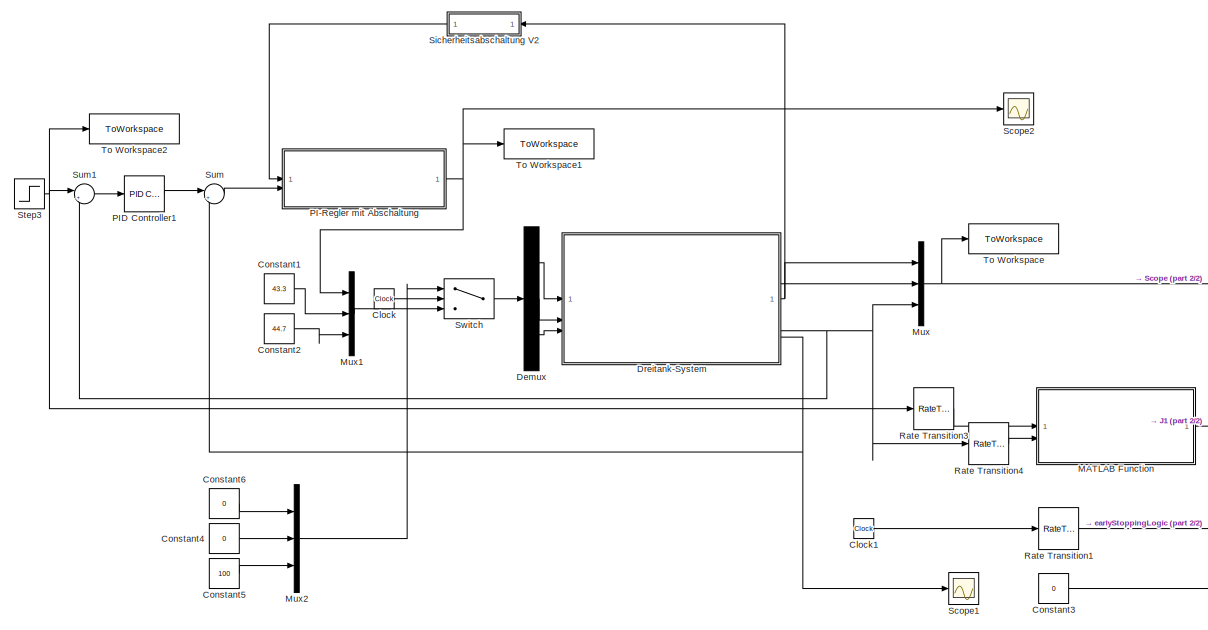
[diagram: root canvas - part 1/2, left side, full height]
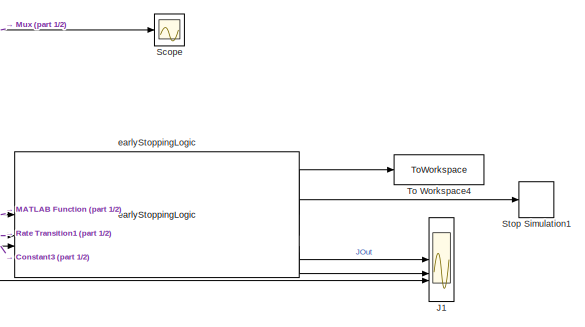
[diagram: root canvas - part 2/2, middle right region]
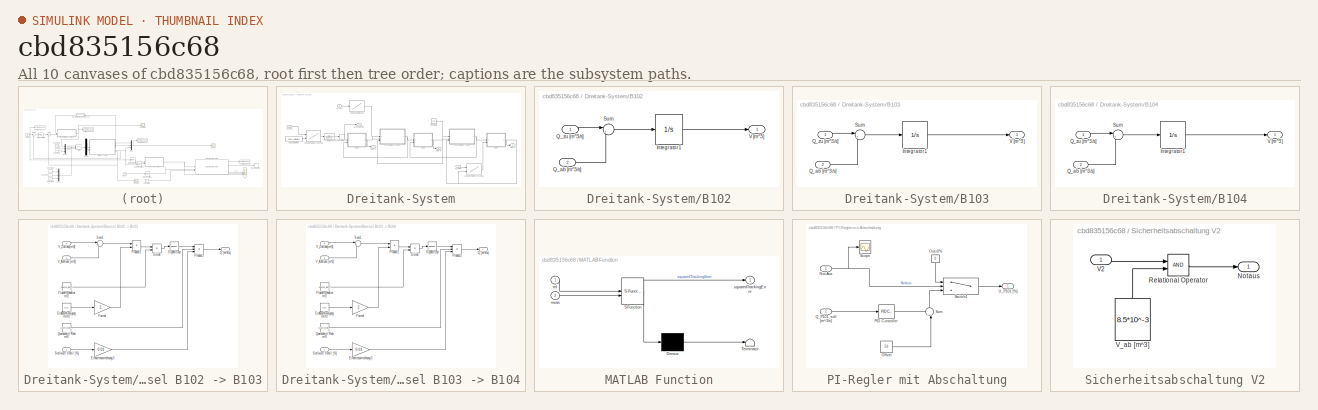
[diagram: thumbnail index - all 10 canvases of the model, root first then tree order]
MODEL slx_cbd835156c68
KIND model
CONFIG AbsTol = auto
CONFIG EnableMultiTasking = on
CONFIG FixedStep = 0.1
CONFIG InitFcn = Ts = 0.1
CONFIG MaxStep = auto
CONFIG MinStep = auto
CONFIG RelTol = 1e-3
CONFIG SampleTimeConstraint = Unconstrained
CONFIG SolverName = FixedStepAuto
CONFIG StartTime = 0.0
CONFIG StopTime = 100
BLOCK [Clock] Clock
BLOCK [Clock] Clock1
BLOCK [Constant] Constant1
  Value = 43.3
BLOCK [Constant] Constant2
  Value = 44.7
BLOCK [Constant] Constant3
  Value = 0
BLOCK [Constant] Constant4
  Value = 0
BLOCK [Constant] Constant5
  Value = 100
BLOCK [Constant] Constant6
  Value = 0
BLOCK [Demux] Demux
  Outputs = 3
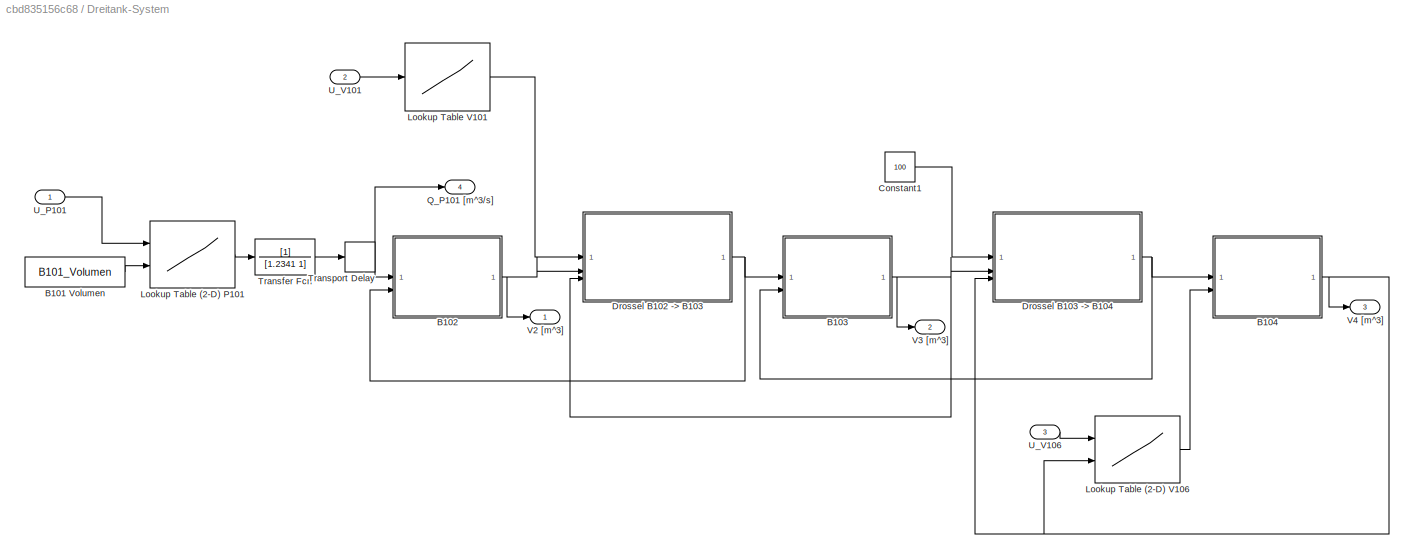
BLOCK [SubSystem] Dreitank-System
BLOCK [Constant] Dreitank-System/B101 Volumen
  OutDataTypeStr = double
  Value = B101_Volumen
BLOCK [SubSystem] Dreitank-System/B102
BLOCK [Integrator] Dreitank-System/B102/Integrator1
  ContinuousStateAttributes = 'Volumen_B102'
  InitialCondition = Initial_Volumen
  LimitOutput = on
  LowerSaturationLimit = 0
  UpperSaturationLimit = 10*10^-3
BLOCK [Inport] Dreitank-System/B102/Q_ab [m^3//s]
  Port = 2
BLOCK [Inport] Dreitank-System/B102/Q_zu [m^3//s]
BLOCK [Sum] Dreitank-System/B102/Sum
  Inputs = |+-
BLOCK [Outport] Dreitank-System/B102/V [m^3]
  VectorParamsAs1DForOutWhenUnconnected = off
BLOCK [SubSystem] Dreitank-System/B103
BLOCK [Integrator] Dreitank-System/B103/Integrator1
  ContinuousStateAttributes = 'Volumen_B102'
  InitialCondition = Initial_Volumen
  LimitOutput = on
  LowerSaturationLimit = 0
  UpperSaturationLimit = 10*10^-3
BLOCK [Inport] Dreitank-System/B103/Q_ab [m^3//s]
  Port = 2
BLOCK [Inport] Dreitank-System/B103/Q_zu [m^3//s]
BLOCK [Sum] Dreitank-System/B103/Sum
  Inputs = |+-
BLOCK [Outport] Dreitank-System/B103/V [m^3]
  VectorParamsAs1DForOutWhenUnconnected = off
BLOCK [SubSystem] Dreitank-System/B104
BLOCK [Integrator] Dreitank-System/B104/Integrator1
  ContinuousStateAttributes = 'Volumen_B102'
  InitialCondition = Initial_Volumen
  LimitOutput = on
  LowerSaturationLimit = 0
  UpperSaturationLimit = 10*10^-3
BLOCK [Inport] Dreitank-System/B104/Q_ab [m^3//s]
  Port = 2
BLOCK [Inport] Dreitank-System/B104/Q_zu [m^3//s]
BLOCK [Sum] Dreitank-System/B104/Sum
  Inputs = |+-
BLOCK [Outport] Dreitank-System/B104/V [m^3]
  VectorParamsAs1DForOutWhenUnconnected = off
BLOCK [Constant] Dreitank-System/Constant1
  Value = 100
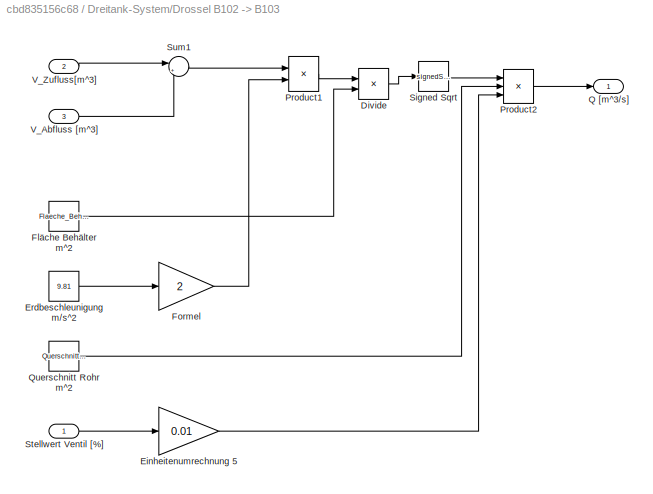
BLOCK [SubSystem] Dreitank-System/Drossel B102 -> B103
BLOCK [Product] Dreitank-System/Drossel B102 -> B103/Divide
  Inputs = */
BLOCK [Gain] Dreitank-System/Drossel B102 -> B103/Einheitenumrechnung 5
  Gain = 0.01
BLOCK [Constant] Dreitank-System/Drossel B102 -> B103/Erdbeschleunigung m//s^2
  OutDataTypeStr = double
  Value = 9.81
BLOCK [Constant] Dreitank-System/Drossel B102 -> B103/Fläche Behälter m^2
  OutDataTypeStr = double
  Value = Flaeche_Behaelter
BLOCK [Gain] Dreitank-System/Drossel B102 -> B103/Formel
  Gain = 2
BLOCK [Product] Dreitank-System/Drossel B102 -> B103/Product1
  RndMeth = Zero
BLOCK [Product] Dreitank-System/Drossel B102 -> B103/Product2
  Inputs = 3
  RndMeth = Zero
BLOCK [Outport] Dreitank-System/Drossel B102 -> B103/Q [m^3//s]
  VectorParamsAs1DForOutWhenUnconnected = off
BLOCK [Constant] Dreitank-System/Drossel B102 -> B103/Querschnitt Rohr m^2
  OutDataTypeStr = double
  Value = Querschnitt_Rohr
BLOCK [Sqrt] Dreitank-System/Drossel B102 -> B103/Signed Sqrt
  Operator = signedSqrt
BLOCK [Inport] Dreitank-System/Drossel B102 -> B103/Stellwert Ventil [%]
BLOCK [Sum] Dreitank-System/Drossel B102 -> B103/Sum1
  Inputs = |+-
BLOCK [Inport] Dreitank-System/Drossel B102 -> B103/V_Abfluss [m^3]
  Port = 3
BLOCK [Inport] Dreitank-System/Drossel B102 -> B103/V_Zufluss[m^3]
  Port = 2
BLOCK [SubSystem] Dreitank-System/Drossel B103 -> B104
BLOCK [Product] Dreitank-System/Drossel B103 -> B104/Divide
  Inputs = */
BLOCK [Gain] Dreitank-System/Drossel B103 -> B104/Einheitenumrechnung 5
  Gain = 0.01
BLOCK [Constant] Dreitank-System/Drossel B103 -> B104/Erdbeschleunigung m//s^2
  OutDataTypeStr = double
  Value = 9.81
BLOCK [Constant] Dreitank-System/Drossel B103 -> B104/Fläche Behälter m^2
  OutDataTypeStr = double
  Value = Flaeche_Behaelter
BLOCK [Gain] Dreitank-System/Drossel B103 -> B104/Formel
  Gain = 2
BLOCK [Product] Dreitank-System/Drossel B103 -> B104/Product1
  RndMeth = Zero
BLOCK [Product] Dreitank-System/Drossel B103 -> B104/Product2
  Inputs = 3
  RndMeth = Zero
BLOCK [Outport] Dreitank-System/Drossel B103 -> B104/Q [m^3//s]
  VectorParamsAs1DForOutWhenUnconnected = off
BLOCK [Constant] Dreitank-System/Drossel B103 -> B104/Querschnitt Rohr m^2
  OutDataTypeStr = double
  Value = Querschnitt_Rohr
BLOCK [Sqrt] Dreitank-System/Drossel B103 -> B104/Signed Sqrt
  Operator = signedSqrt
BLOCK [Inport] Dreitank-System/Drossel B103 -> B104/Stellwert Ventil [%]
BLOCK [Sum] Dreitank-System/Drossel B103 -> B104/Sum1
  Inputs = |+-
BLOCK [Inport] Dreitank-System/Drossel B103 -> B104/V_Abfluss [m^3]
  Port = 3
BLOCK [Inport] Dreitank-System/Drossel B103 -> B104/V_Zufluss[m^3]
  Port = 2
BLOCK [Lookup2D] Dreitank-System/Lookup Table (2-D) P101
  ColumnIndex = [40,130]*10^-3
  InputSameDT = off
  LookUpMeth = Interpolation-Use End Values
  RowIndex = [50,55,60,65,70,75,80,85,90,95,100]
  SaturateOnIntegerOverflow = off
  Table = reshape([0,0.0606,0.2450,0.3378,0.4184,0.5002,0.5801,0.6551,0.7138,0.7746,0.8206,0,0.2799,0.3497,0.4278,0.5053,0.5810,0.6481,0.7168,0.7695,0.8350,0.8786]*10^-3,11,2)
BLOCK [Lookup2D] Dreitank-System/Lookup Table (2-D) V106
  ColumnIndex = [2,2.8,10]*10^-3
  InputSameDT = off
  LookUpMeth = Interpolation-Use End Values
  RowIndex = [15,20,25,30,35,40,45,50,55,60,65,70,75,80,85]
  SaturateOnIntegerOverflow = off
  Table = reshape([0,0,0,0,0,0,0,0,0,0,0,0,0,0,0,0,0.032,0.097,0.179,0.262,0.361,0.475,0.604,0.902,1.089,1.318,1.536,1.685,1.853,2.029,0,0.032,0.097,0.179,0.262,0.361,0.475,0.604,0.902,1.089,1.318,1.536,1.685,1.853,2.029]*10^-3,15,3)
BLOCK [Lookup] Dreitank-System/Lookup Table V101
  InputValues = [0,20,25,30,35,40,45,50,55,60,65,70,75,80,85,90,100]
  LookUpMeth = Interpolation-Use End Values
  SaturateOnIntegerOverflow = off
  Table = [100,96,90,88,84,76,68,60,49,41,34,27,22,19,16,12,0]
BLOCK [Outport] Dreitank-System/Q_P101 [m^3//s]
  Port = 4
  VectorParamsAs1DForOutWhenUnconnected = off
BLOCK [TransferFcn] Dreitank-System/Transfer Fcn
  Denominator = [1.2341 1]
BLOCK [TransportDelay] Dreitank-System/Transport Delay
  DelayTime = 1.1
BLOCK [Inport] Dreitank-System/U_P101
BLOCK [Inport] Dreitank-System/U_V101 
  Port = 2
BLOCK [Inport] Dreitank-System/U_V106
  Port = 3
BLOCK [Outport] Dreitank-System/V2 [m^3]
  VectorParamsAs1DForOutWhenUnconnected = off
BLOCK [Outport] Dreitank-System/V3 [m^3]
  Port = 2
  VectorParamsAs1DForOutWhenUnconnected = off
BLOCK [Outport] Dreitank-System/V4 [m^3]
  Port = 3
  VectorParamsAs1DForOutWhenUnconnected = off
BLOCK [Scope] J1
  Floating = off
  NumInputPorts = 3
  ScopeSpecificationString = Simulink.scopes.TimeScopeBlockCfg('CurrentConfiguration', extmgr.ConfigurationSet(extmgr.Configuration('Core','General UI',true),extmgr.Configuration('Core','Source UI',true),extmgr.Configuration('Sources','WiredSimulink',true,'DataLoggingVariableName','ScopeData1'),extmgr.Configuration('Visuals','Time Domain',true,'SerializedDisplays',{struct('MinYLimReal','-0.00002','MaxYLimReal','0.00014','YLab...<+2226ch>
BLOCK [SubSystem] MATLAB Function
  ErrorFcn = Stateflow.Translate.translate
  PermitHierarchicalResolution = ExplicitOnly
  SFBlockType = MATLAB Function
  TreatAsAtomicUnit = on
BLOCK [Demux] MATLAB Function/ Demux 
  Outputs = 1
BLOCK [S-Function] MATLAB Function/ SFunction 
  EnableBusSupport = on
  FunctionName = sf_sfun
  PortCounts = [2 2]
  SFcnIsStateOwnerBlock = off
  SFunctionDeploymentMode = off
  Tag = Stateflow S-Function 2
BLOCK [Terminator] MATLAB Function/ Terminator 
BLOCK [Inport] MATLAB Function/meas
  Port = 2
BLOCK [Inport] MATLAB Function/ref
BLOCK [Outport] MATLAB Function/squaredTrackingError
BLOCK [Mux] Mux
  DisplayOption = bar
  Inputs = 3
BLOCK [Mux] Mux1
  DisplayOption = bar
  Inputs = 3
BLOCK [Mux] Mux2
  DisplayOption = bar
  Inputs = 3
BLOCK [SubSystem] PI-Regler mit Abschaltung
BLOCK [Inport] PI-Regler mit Abschaltung/Not-Aus
BLOCK [Constant] PI-Regler mit Abschaltung/Offset
  Value = 50
BLOCK [Constant] PI-Regler mit Abschaltung/Out=0%
  NameLocation = left
  Value = 0
BLOCK [Reference] PI-Regler mit Abschaltung/PID Controller  REF=slpidlib/PID Controller
  SourceBlock = slpidlib/PID Controller
  SourceType = PID 1dof
BLOCK [Inport] PI-Regler mit Abschaltung/Q_P101_soll [m^3//s]
  Port = 2
BLOCK [Scope] PI-Regler mit Abschaltung/Scope
  Floating = off
  NumInputPorts = 1
  ScopeSpecificationString = Simulink.scopes.TimeScopeBlockCfg('CurrentConfiguration', extmgr.ConfigurationSet(extmgr.Configuration('Core','General UI',true),extmgr.Configuration('Core','Source UI',true),extmgr.Configuration('Sources','WiredSimulink',true,'DataLoggingVariableName','ScopeData3','DataLoggingSaveFormat','StructureWithTime','DataLoggingLimitDataPoints',true,'DataLoggingDecimation','1','DataLoggingDecimateData',tr...<+909ch>
BLOCK [Sum] PI-Regler mit Abschaltung/Sum
  Inputs = ++|
  NameLocation = right
BLOCK [Switch] PI-Regler mit Abschaltung/Switch1
  Threshold = 0.1
BLOCK [Outport] PI-Regler mit Abschaltung/U_P101 [%]
BLOCK [Reference] PID Controller1  REF=slpidlib/PID Controller
  SourceBlock = slpidlib/PID Controller
  SourceType = PID 1dof
BLOCK [RateTransition] Rate Transition1
  OutPortSampleTime = ESSettings.t_obj
BLOCK [RateTransition] Rate Transition3
  OutPortSampleTime = ESSettings.t_obj
BLOCK [RateTransition] Rate Transition4
  OutPortSampleTime = ESSettings.t_obj
BLOCK [Scope] Scope
  Floating = off
  NumInputPorts = 1
  ScopeSpecificationString = Simulink.scopes.TimeScopeBlockCfg('CurrentConfiguration', extmgr.ConfigurationSet(extmgr.Configuration('Core','General UI',true),extmgr.Configuration('Core','Source UI',true),extmgr.Configuration('Sources','WiredSimulink',true,'DataLoggingSaveFormat','StructureWithTime','DataLoggingDecimation','1','DataLoggingDecimateData',true),extmgr.Configuration('Visuals','Time Domain',true,'SerializedDisplays...<+1735ch>
BLOCK [Scope] Scope1
  Floating = off
  NumInputPorts = 1
  ScopeSpecificationString = Simulink.scopes.TimeScopeBlockCfg('CurrentConfiguration', extmgr.ConfigurationSet(extmgr.Configuration('Core','General UI',true),extmgr.Configuration('Core','Source UI',true),extmgr.Configuration('Sources','WiredSimulink',true,'DataLoggingVariableName','ScopeData1','DataLoggingSaveFormat','StructureWithTime','DataLoggingDecimation','1','DataLoggingDecimateData',true),extmgr.Configuration('Visuals'...<+1700ch>
BLOCK [Scope] Scope2
  Floating = off
  NumInputPorts = 1
  ScopeSpecificationString = Simulink.scopes.TimeScopeBlockCfg('CurrentConfiguration', extmgr.ConfigurationSet(extmgr.Configuration('Core','General UI',true),extmgr.Configuration('Core','Source UI',true),extmgr.Configuration('Sources','WiredSimulink',true,'DataLoggingVariableName','ScopeData1'),extmgr.Configuration('Visuals','Time Domain',true,'SerializedDisplays',{struct('MinYLimReal','-12.5','MaxYLimReal','112.5','YLabelRea...<+1397ch>
BLOCK [SubSystem] Sicherheitsabschaltung V2
BLOCK [Outport] Sicherheitsabschaltung V2/Notaus
  VectorParamsAs1DForOutWhenUnconnected = off
BLOCK [RelationalOperator] Sicherheitsabschaltung V2/Relational Operator
  InputSameDT = off
BLOCK [Inport] Sicherheitsabschaltung V2/V2
BLOCK [Constant] Sicherheitsabschaltung V2/V_ab [m^3]
  NameLocation = left
  Value = 8.5*10^-3
BLOCK [Step] Step3
  After = 4*10^-3*0.75
  SampleTime = 0
  Time = tstart
BLOCK [Stop] Stop Simulation1
BLOCK [Sum] Sum
  Inputs = |+-
BLOCK [Sum] Sum1
  Inputs = |+-
BLOCK [Switch] Switch
  Criteria = u2 > Threshold
  InputSameDT = off
  SaturateOnIntegerOverflow = off
  Threshold = 100
BLOCK [ToWorkspace] To Workspace
  FixptAsFi = on
  MaxDataPoints = inf
  SampleTime = -1
  SaveFormat = Structure With Time
  VariableName = waterLevels
BLOCK [ToWorkspace] To Workspace1
  FixptAsFi = on
  MaxDataPoints = inf
  SampleTime = -1
  SaveFormat = Structure With Time
  VariableName = pumpCmd
BLOCK [ToWorkspace] To Workspace2
  FixptAsFi = on
  MaxDataPoints = inf
  SampleTime = -1
  SaveFormat = Structure With Time
  VariableName = reference
BLOCK [ToWorkspace] To Workspace4
  FixptAsFi = on
  MaxDataPoints = inf
  SampleTime = -1
  SaveFormat = Structure With Time
  VariableName = j
BLOCK [Reference] earlyStoppingLogic  REF=UtilLib/earlyStoppingLogic
  SourceBlock = UtilLib/earlyStoppingLogic
  SourceType = SubSystem
LINE Clock1:1 -> Rate Transition1:1
LINE Clock:1 -> Switch:2
LINE Constant1:1 -> Mux1:2
LINE Constant2:1 -> Mux1:3
LINE Constant3:1 -> earlyStoppingLogic:3
LINE Constant4:1 -> Mux2:2
LINE Constant5:1 -> Mux2:3
LINE Constant6:1 -> Mux2:1
LINE Demux:1 -> Dreitank-System:1
LINE Demux:2 -> Dreitank-System:2
LINE Demux:3 -> Dreitank-System:3
LINE Dreitank-System/B101 Volumen:1 -> Dreitank-System/Lookup Table (2-D) P101:2
LINE Dreitank-System/B102/Integrator1:1 -> Dreitank-System/B102/V [m^3]:1
LINE Dreitank-System/B102/Q_ab [m^3//s]:1 -> Dreitank-System/B102/Sum:2
LINE Dreitank-System/B102/Q_zu [m^3//s]:1 -> Dreitank-System/B102/Sum:1
LINE Dreitank-System/B102/Sum:1 -> Dreitank-System/B102/Integrator1:1
NET Dreitank-System/B102:1 -> Dreitank-System/Drossel B102 -> B103:2, Dreitank-System/V2 [m^3]:1
LINE Dreitank-System/B103/Integrator1:1 -> Dreitank-System/B103/V [m^3]:1
LINE Dreitank-System/B103/Q_ab [m^3//s]:1 -> Dreitank-System/B103/Sum:2
LINE Dreitank-System/B103/Q_zu [m^3//s]:1 -> Dreitank-System/B103/Sum:1
LINE Dreitank-System/B103/Sum:1 -> Dreitank-System/B103/Integrator1:1
NET Dreitank-System/B103:1 -> Dreitank-System/Drossel B102 -> B103:3, Dreitank-System/Drossel B103 -> B104:2, Dreitank-System/V3 [m^3]:1
LINE Dreitank-System/B104/Integrator1:1 -> Dreitank-System/B104/V [m^3]:1
LINE Dreitank-System/B104/Q_ab [m^3//s]:1 -> Dreitank-System/B104/Sum:2
LINE Dreitank-System/B104/Q_zu [m^3//s]:1 -> Dreitank-System/B104/Sum:1
LINE Dreitank-System/B104/Sum:1 -> Dreitank-System/B104/Integrator1:1
NET Dreitank-System/B104:1 -> Dreitank-System/Drossel B103 -> B104:3, Dreitank-System/Lookup Table (2-D) V106:2, Dreitank-System/V4 [m^3]:1
LINE Dreitank-System/Constant1:1 -> Dreitank-System/Drossel B103 -> B104:1
LINE Dreitank-System/Drossel B102 -> B103/Divide:1 -> Dreitank-System/Drossel B102 -> B103/Signed Sqrt:1
LINE Dreitank-System/Drossel B102 -> B103/Einheitenumrechnung 5:1 -> Dreitank-System/Drossel B102 -> B103/Product2:3
LINE Dreitank-System/Drossel B102 -> B103/Erdbeschleunigung m//s^2:1 -> Dreitank-System/Drossel B102 -> B103/Formel:1
LINE Dreitank-System/Drossel B102 -> B103/Fläche Behälter m^2:1 -> Dreitank-System/Drossel B102 -> B103/Divide:2
LINE Dreitank-System/Drossel B102 -> B103/Formel:1 -> Dreitank-System/Drossel B102 -> B103/Product1:2
LINE Dreitank-System/Drossel B102 -> B103/Product1:1 -> Dreitank-System/Drossel B102 -> B103/Divide:1
LINE Dreitank-System/Drossel B102 -> B103/Product2:1 -> Dreitank-System/Drossel B102 -> B103/Q [m^3//s]:1
LINE Dreitank-System/Drossel B102 -> B103/Querschnitt Rohr m^2:1 -> Dreitank-System/Drossel B102 -> B103/Product2:2
LINE Dreitank-System/Drossel B102 -> B103/Signed Sqrt:1 -> Dreitank-System/Drossel B102 -> B103/Product2:1
LINE Dreitank-System/Drossel B102 -> B103/Stellwert Ventil [%]:1 -> Dreitank-System/Drossel B102 -> B103/Einheitenumrechnung 5:1
LINE Dreitank-System/Drossel B102 -> B103/Sum1:1 -> Dreitank-System/Drossel B102 -> B103/Product1:1
LINE Dreitank-System/Drossel B102 -> B103/V_Abfluss [m^3]:1 -> Dreitank-System/Drossel B102 -> B103/Sum1:2
LINE Dreitank-System/Drossel B102 -> B103/V_Zufluss[m^3]:1 -> Dreitank-System/Drossel B102 -> B103/Sum1:1
NET Dreitank-System/Drossel B102 -> B103:1 -> Dreitank-System/B102:2, Dreitank-System/B103:1
LINE Dreitank-System/Drossel B103 -> B104/Divide:1 -> Dreitank-System/Drossel B103 -> B104/Signed Sqrt:1
LINE Dreitank-System/Drossel B103 -> B104/Einheitenumrechnung 5:1 -> Dreitank-System/Drossel B103 -> B104/Product2:3
LINE Dreitank-System/Drossel B103 -> B104/Erdbeschleunigung m//s^2:1 -> Dreitank-System/Drossel B103 -> B104/Formel:1
LINE Dreitank-System/Drossel B103 -> B104/Fläche Behälter m^2:1 -> Dreitank-System/Drossel B103 -> B104/Divide:2
LINE Dreitank-System/Drossel B103 -> B104/Formel:1 -> Dreitank-System/Drossel B103 -> B104/Product1:2
LINE Dreitank-System/Drossel B103 -> B104/Product1:1 -> Dreitank-System/Drossel B103 -> B104/Divide:1
LINE Dreitank-System/Drossel B103 -> B104/Product2:1 -> Dreitank-System/Drossel B103 -> B104/Q [m^3//s]:1
LINE Dreitank-System/Drossel B103 -> B104/Querschnitt Rohr m^2:1 -> Dreitank-System/Drossel B103 -> B104/Product2:2
LINE Dreitank-System/Drossel B103 -> B104/Signed Sqrt:1 -> Dreitank-System/Drossel B103 -> B104/Product2:1
LINE Dreitank-System/Drossel B103 -> B104/Stellwert Ventil [%]:1 -> Dreitank-System/Drossel B103 -> B104/Einheitenumrechnung 5:1
LINE Dreitank-System/Drossel B103 -> B104/Sum1:1 -> Dreitank-System/Drossel B103 -> B104/Product1:1
LINE Dreitank-System/Drossel B103 -> B104/V_Abfluss [m^3]:1 -> Dreitank-System/Drossel B103 -> B104/Sum1:2
LINE Dreitank-System/Drossel B103 -> B104/V_Zufluss[m^3]:1 -> Dreitank-System/Drossel B103 -> B104/Sum1:1
NET Dreitank-System/Drossel B103 -> B104:1 -> Dreitank-System/B103:2, Dreitank-System/B104:1
LINE Dreitank-System/Lookup Table (2-D) P101:1 -> Dreitank-System/Transfer Fcn:1
LINE Dreitank-System/Lookup Table (2-D) V106:1 -> Dreitank-System/B104:2
LINE Dreitank-System/Lookup Table V101:1 -> Dreitank-System/Drossel B102 -> B103:1
LINE Dreitank-System/Transfer Fcn:1 -> Dreitank-System/Transport Delay:1
NET Dreitank-System/Transport Delay:1 -> Dreitank-System/B102:1, Dreitank-System/Q_P101 [m^3//s]:1
LINE Dreitank-System/U_P101:1 -> Dreitank-System/Lookup Table (2-D) P101:1
LINE Dreitank-System/U_V101 :1 -> Dreitank-System/Lookup Table V101:1
LINE Dreitank-System/U_V106:1 -> Dreitank-System/Lookup Table (2-D) V106:1
NET Dreitank-System:1 -> Mux:1, Sicherheitsabschaltung V2:1
LINE Dreitank-System:2 -> Mux:2
NET Dreitank-System:3 -> Mux:3, Rate Transition4:1, Sum1:2
NET Dreitank-System:4 -> Scope1:1, Sum:2
NET MATLAB Function:1 -> J1:3, earlyStoppingLogic:1
LINE Mux1:1 -> Switch:3
LINE Mux2:1 -> Switch:1
NET Mux:1 -> Scope:1, To Workspace:1
NET PI-Regler mit Abschaltung/Not-Aus:1 -> PI-Regler mit Abschaltung/Scope:1, PI-Regler mit Abschaltung/Switch1:2
LINE PI-Regler mit Abschaltung/Offset:1 -> PI-Regler mit Abschaltung/Sum:2
LINE PI-Regler mit Abschaltung/Out=0%:1 -> PI-Regler mit Abschaltung/Switch1:1
LINE PI-Regler mit Abschaltung/PID Controller:1 -> PI-Regler mit Abschaltung/Sum:1
LINE PI-Regler mit Abschaltung/Q_P101_soll [m^3//s]:1 -> PI-Regler mit Abschaltung/PID Controller:1
LINE PI-Regler mit Abschaltung/Sum:1 -> PI-Regler mit Abschaltung/Switch1:3
LINE PI-Regler mit Abschaltung/Switch1:1 -> PI-Regler mit Abschaltung/U_P101 [%]:1
NET PI-Regler mit Abschaltung:1 -> Mux1:1, Scope2:1, To Workspace1:1
LINE PID Controller1:1 -> Sum:1
LINE Rate Transition1:1 -> earlyStoppingLogic:2
LINE Rate Transition3:1 -> MATLAB Function:1
LINE Rate Transition4:1 -> MATLAB Function:2
LINE Sicherheitsabschaltung V2/Relational Operator:1 -> Sicherheitsabschaltung V2/Notaus:1
LINE Sicherheitsabschaltung V2/V2:1 -> Sicherheitsabschaltung V2/Relational Operator:1
LINE Sicherheitsabschaltung V2/V_ab [m^3]:1 -> Sicherheitsabschaltung V2/Relational Operator:2
LINE Sicherheitsabschaltung V2:1 -> PI-Regler mit Abschaltung:1
NET Step3:1 -> Rate Transition3:1, Sum1:1, To Workspace2:1
LINE Sum1:1 -> PID Controller1:1
LINE Sum:1 -> PI-Regler mit Abschaltung:2
LINE Switch:1 -> Demux:1
LINE earlyStoppingLogic:1 -> To Workspace4:1
LINE earlyStoppingLogic:2 -> Stop Simulation1:1
LINE earlyStoppingLogic:3 -> J1:1
LINE earlyStoppingLogic:4 -> J1:2
note: NET lines group one-source signal fan-out (src -> all destinations, sorted); 1:1 wires keep LINE
CHART MATLAB Function states=1 transitions=1
  STATE_LABEL 'eML_blk_kernel()'
  STATE_LABEL 'SCRIPT:\nfunction squaredTrackingError  = fcn(ref, meas)\nsquaredTrackingError = (ref-meas)^2;\nend'
CHART  states=0 transitions=0
